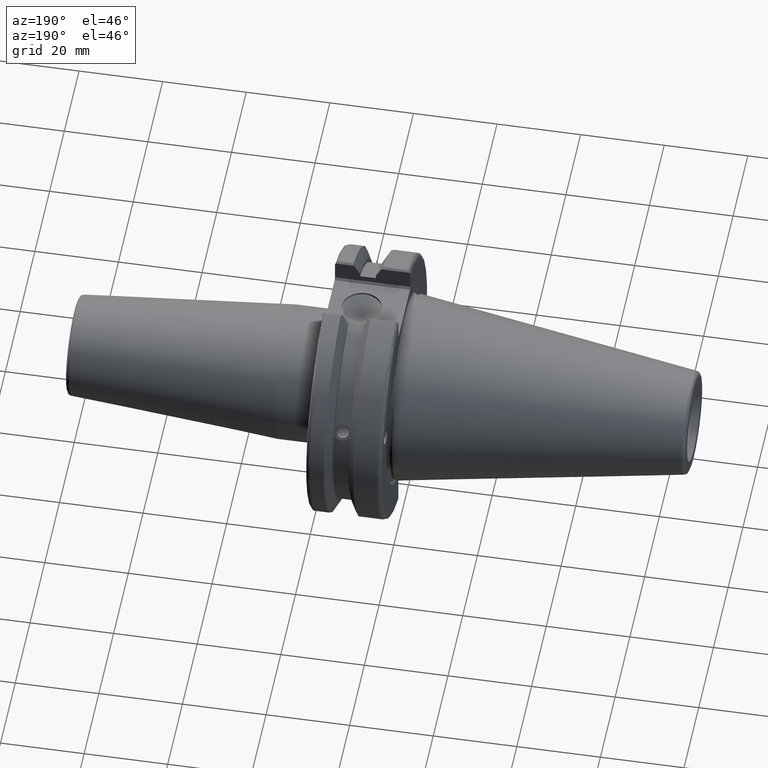
[diagram: clean part render]
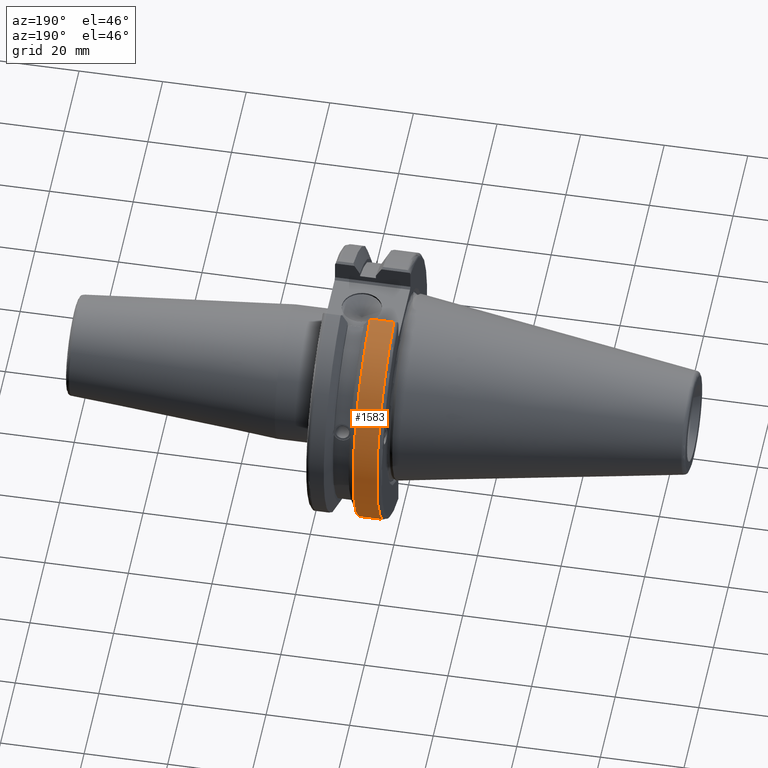
[diagram: same view with one face highlighted and labeled with its STEP entity id]
A machine part, auxiliary view. The second image highlights one B-rep face of the part: STEP entity #1583.
In plain terms, the highlighted cylindrical surface (partial cylindrical patch) has radius 31.75 mm, axis along (1, 0, 0).
Its self-contained STEP definition (entity closure, byte-faithful):
#104=CYLINDRICAL_SURFACE('',#1772,31.75);
#237=LINE('',#2947,#333);
#253=LINE('',#3009,#349);
#333=VECTOR('',#2131,10.);
#349=VECTOR('',#2191,10.);
#439=FACE_OUTER_BOUND('',#541,.T.);
#541=EDGE_LOOP('',(#1418,#1419,#1420,#1421));
#599=CIRCLE('',#1710,31.75);
#613=CIRCLE('',#1745,31.75);
#722=VERTEX_POINT('',#2682);
#723=VERTEX_POINT('',#2686);
#764=VERTEX_POINT('',#2902);
#765=VERTEX_POINT('',#2911);
#906=EDGE_CURVE('',#722,#723,#599,.T.);
#969=EDGE_CURVE('',#764,#765,#613,.T.);
#982=EDGE_CURVE('',#765,#722,#237,.T.);
#1009=EDGE_CURVE('',#723,#764,#253,.T.);
#1418=ORIENTED_EDGE('',*,*,#969,.F.);
#1419=ORIENTED_EDGE('',*,*,#1009,.F.);
#1420=ORIENTED_EDGE('',*,*,#906,.F.);
#1421=ORIENTED_EDGE('',*,*,#982,.F.);
#1583=ADVANCED_FACE('',(#439),#104,.T.);
#1710=AXIS2_PLACEMENT_3D('',#2687,#2017,#2018);
#1745=AXIS2_PLACEMENT_3D('',#2912,#2113,#2114);
#1772=AXIS2_PLACEMENT_3D('',#3010,#2192,#2193);
#2017=DIRECTION('center_axis',(1.,0.,0.));
#2018=DIRECTION('ref_axis',(0.,0.,-1.));
#2113=DIRECTION('center_axis',(-1.,0.,0.));
#2114=DIRECTION('ref_axis',(0.,1.,1.60812264967664E-16));
#2131=DIRECTION('',(1.,0.,0.));
#2191=DIRECTION('',(-1.,0.,0.));
#2192=DIRECTION('center_axis',(1.,0.,0.));
#2193=DIRECTION('ref_axis',(0.,1.,0.));
#2682=CARTESIAN_POINT('',(7.64983323092436,8.67204822802685,-30.5427254764662));
#2686=CARTESIAN_POINT('',(7.64983323092436,8.67204822802685,30.5427254764662));
#2687=CARTESIAN_POINT('Origin',(7.64983323092436,0.,0.));
#2902=CARTESIAN_POINT('',(2.,8.67204822802685,30.5427254764662));
#2911=CARTESIAN_POINT('',(2.,8.67204822802685,-30.5427254764662));
#2912=CARTESIAN_POINT('Origin',(2.,0.,0.));
#2947=CARTESIAN_POINT('',(4.32491661546218,8.67204822802685,-30.5427254764662));
#3009=CARTESIAN_POINT('',(4.32491661546218,8.67204822802685,30.5427254764662));
#3010=CARTESIAN_POINT('Origin',(4.32491661546218,0.,0.));